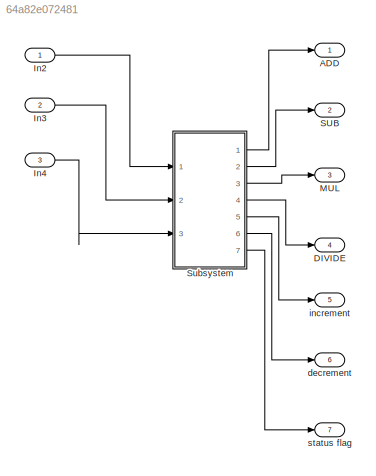
MODEL slx_64a82e072481
KIND model
CONFIG AbsTol = auto
CONFIG EnableMultiTasking = off
CONFIG FixedStep = auto
CONFIG MaxStep = auto
CONFIG MinStep = auto
CONFIG RelTol = 1e-3
CONFIG SampleTimeConstraint = Unconstrained
CONFIG SolverName = VariableStepAuto
CONFIG StartTime = 0.0
CONFIG StopTime = 10.0
BLOCK [Outport] ADD
BLOCK [Outport] DIVIDE
  Port = 4
BLOCK [Inport] In2
BLOCK [Inport] In3
  Port = 2
BLOCK [Inport] In4
  Port = 3
BLOCK [Outport] MUL
  Port = 3
BLOCK [Outport] SUB
  Port = 2
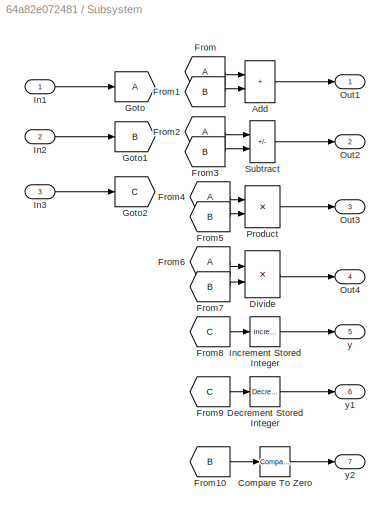
BLOCK [SubSystem] Subsystem
  Ports = [3, 7]
  RequestExecContextInheritance = off
BLOCK [Sum] Subsystem/Add
  IconShape = rectangular
  Ports = [2, 1]
BLOCK [Reference] Subsystem/Compare To Zero  REF=simulink/Logic and Bit
Operations/Compare
To Zero
  Ports = [1, 1]
  SourceBlock = simulink/Logic and Bit\nOperations/Compare\nTo Zero
  SourceProductBaseCode = SL
  SourceType = Compare To Zero
BLOCK [Reference] Subsystem/Decrement Stored Integer  REF=simulink/Additional Math
& Discrete/Additional Math:
Increment - Decrement/Decrement
Stored Integer
  Ports = [1, 1]
  SourceBlock = simulink/Additional Math\n& Discrete/Additional Math:\nIncrement - Decrement/Decrement\nStored Integer
  SourceProductBaseCode = SL
  SourceType = Stored Integer Value Decrement
BLOCK [Product] Subsystem/Divide
  Inputs = */
  Ports = [2, 1]
BLOCK [From] Subsystem/From
BLOCK [From] Subsystem/From1
  GotoTag = B
BLOCK [From] Subsystem/From10
  GotoTag = B
BLOCK [From] Subsystem/From2
BLOCK [From] Subsystem/From3
  GotoTag = B
BLOCK [From] Subsystem/From4
BLOCK [From] Subsystem/From5
  GotoTag = B
BLOCK [From] Subsystem/From6
BLOCK [From] Subsystem/From7
  GotoTag = B
BLOCK [From] Subsystem/From8
  GotoTag = C
BLOCK [From] Subsystem/From9
  GotoTag = C
BLOCK [Goto] Subsystem/Goto
BLOCK [Goto] Subsystem/Goto1
  GotoTag = B
BLOCK [Goto] Subsystem/Goto2
  GotoTag = C
BLOCK [Inport] Subsystem/In1
BLOCK [Inport] Subsystem/In2
  Port = 2
BLOCK [Inport] Subsystem/In3
  Port = 3
BLOCK [Reference] Subsystem/Increment Stored Integer  REF=simulink/Additional Math
& Discrete/Additional Math:
Increment - Decrement/Increment
Stored Integer
  Ports = [1, 1]
  SourceBlock = simulink/Additional Math\n& Discrete/Additional Math:\nIncrement - Decrement/Increment\nStored Integer
  SourceProductBaseCode = SL
  SourceType = Stored Integer Value Increment
BLOCK [Outport] Subsystem/Out1
BLOCK [Outport] Subsystem/Out2
  Port = 2
BLOCK [Outport] Subsystem/Out3
  Port = 3
BLOCK [Outport] Subsystem/Out4
  Port = 4
BLOCK [Product] Subsystem/Product
  Ports = [2, 1]
BLOCK [Sum] Subsystem/Subtract
  IconShape = rectangular
  Inputs = +-
  Ports = [2, 1]
BLOCK [Outport] Subsystem/y
  Port = 5
BLOCK [Outport] Subsystem/y1
  Port = 6
BLOCK [Outport] Subsystem/y2
  Port = 7
BLOCK [Outport] decrement
  Port = 6
BLOCK [Outport] increment
  Port = 5
BLOCK [Outport] status flag
  Port = 7
LINE In2:1 -> Subsystem:1
LINE In3:1 -> Subsystem:2
LINE In4:1 -> Subsystem:3
LINE Subsystem/Add:1 -> Subsystem/Out1:1
LINE Subsystem/Compare To Zero:1 -> Subsystem/y2:1
LINE Subsystem/Decrement Stored Integer:1 -> Subsystem/y1:1
LINE Subsystem/Divide:1 -> Subsystem/Out4:1
LINE Subsystem/From10:1 -> Subsystem/Compare To Zero:1
LINE Subsystem/From1:1 -> Subsystem/Add:2
LINE Subsystem/From2:1 -> Subsystem/Subtract:1
LINE Subsystem/From3:1 -> Subsystem/Subtract:2
LINE Subsystem/From4:1 -> Subsystem/Product:1
LINE Subsystem/From5:1 -> Subsystem/Product:2
LINE Subsystem/From6:1 -> Subsystem/Divide:1
LINE Subsystem/From7:1 -> Subsystem/Divide:2
LINE Subsystem/From8:1 -> Subsystem/Increment Stored Integer:1
LINE Subsystem/From9:1 -> Subsystem/Decrement Stored Integer:1
LINE Subsystem/From:1 -> Subsystem/Add:1
LINE Subsystem/In1:1 -> Subsystem/Goto:1
LINE Subsystem/In2:1 -> Subsystem/Goto1:1
LINE Subsystem/In3:1 -> Subsystem/Goto2:1
LINE Subsystem/Increment Stored Integer:1 -> Subsystem/y:1
LINE Subsystem/Product:1 -> Subsystem/Out3:1
LINE Subsystem/Subtract:1 -> Subsystem/Out2:1
LINE Subsystem:1 -> ADD:1
LINE Subsystem:2 -> SUB:1
LINE Subsystem:3 -> MUL:1
LINE Subsystem:4 -> DIVIDE:1
LINE Subsystem:5 -> increment:1
LINE Subsystem:6 -> decrement:1
LINE Subsystem:7 -> status flag:1
